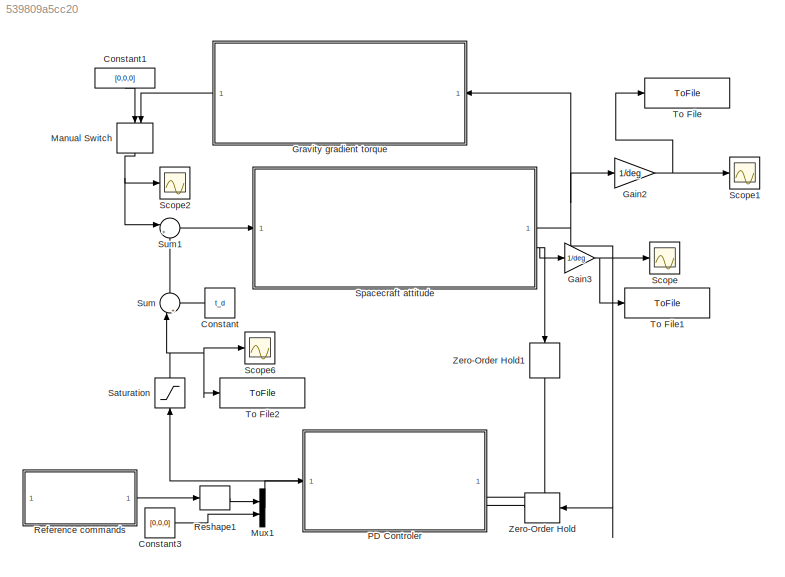
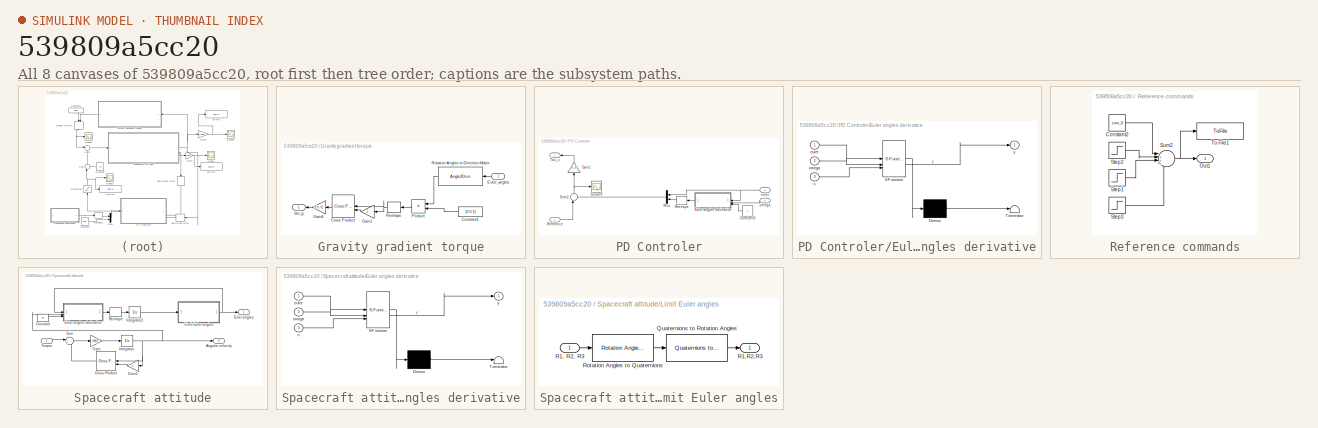
[diagram: thumbnail index - all 8 canvases of the model, root first then tree order]
MODEL slx_539809a5cc20
KIND model
CONFIG AbsTol = 1e-6
CONFIG EnableMultiTasking = off
CONFIG FixedStep = 0.1
CONFIG MaxStep = auto
CONFIG MinStep = auto
CONFIG RelTol = 1e-6
CONFIG SampleTimeConstraint = Unconstrained
CONFIG SolverName = FixedStepAuto
CONFIG StartTime = 0.0
CONFIG StopTime = 1500
BLOCK [Constant] Constant
  Value = t_d
BLOCK [Constant] Constant1
  NameLocation = right
  Value = [0,0,0]
BLOCK [Constant] Constant3
  Value = [0,0,0]
BLOCK [Gain] Gain2
  Gain = 1/deg
  Multiplication = Matrix(K*u)
BLOCK [Gain] Gain3
  Gain = 1/deg
  Multiplication = Matrix(K*u)
BLOCK [SubSystem] Gravity gradient torque
BLOCK [Constant] Gravity gradient torque/Constant1
  Value = [0,0,1]
BLOCK [Reference] Gravity gradient torque/Cross Product  REF=matrix_library/Cross Product
  SourceBlock = matrix_library/Cross Product
  SourceType = CrossProduct
BLOCK [Inport] Gravity gradient torque/Euler_angles
  NameLocation = top
BLOCK [Gain] Gravity gradient torque/Gain1
  Gain = J
  Multiplication = Matrix(K*u)
BLOCK [Gain] Gravity gradient torque/Gain4
  Gain = 3*n.^2
  Multiplication = Matrix(K*u)
BLOCK [Product] Gravity gradient torque/Product
  Multiplication = Matrix(*)
BLOCK [Reshape] Gravity gradient torque/Reshape
BLOCK [Angle2Dcm] Gravity gradient torque/Rotation Angles to Direction  Matrix
  AttributesFormatString = Rotation Order: %<rotationOrder>
BLOCK [Outport] Gravity gradient torque/tau_g
BLOCK [ManualSwitch] Manual Switch
  CurrentSetting = 0
  NameLocation = left
BLOCK [Mux] Mux1
  DisplayOption = bar
  Inputs = 2
BLOCK [SubSystem] PD Controler
  PortSchema = {"entries":[{"content":{"sides":[{"content":{"connectorIds":["Out1","In1"]},"type":"ConnectorPlacement.EquallySpacedRectSide","uuid":"f595316a-67fa-4e45-afef-328468ac5eb6"},{"content":{"connectorIds":["In2","In3"],"side":"RIGHT"},"type":"ConnectorPlacement.EquallySpacedRectSide","uuid":"1d08d35b-debb-44a1-b4ca-ee5ff70ce730"},{"content":{"side":"TOP"},"type":"ConnectorPlacement.EquallySpacedRectSid...<+234ch>
BLOCK [Constant] PD Controler/Constant2
  Value = n
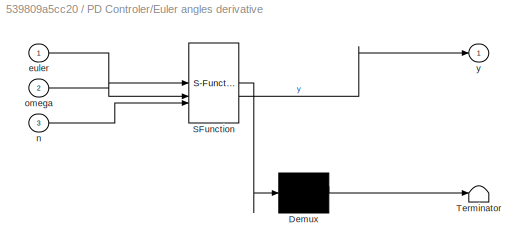
BLOCK [SubSystem] PD Controler/Euler angles derivative
  ErrorFcn = Stateflow.Translate.translate
  PermitHierarchicalResolution = ExplicitOnly
  SFBlockType = MATLAB Function
  TreatAsAtomicUnit = on
BLOCK [Demux] PD Controler/Euler angles derivative/ Demux 
  Outputs = 1
BLOCK [S-Function] PD Controler/Euler angles derivative/ SFunction 
  EnableBusSupport = on
  FunctionName = sf_sfun
  PortCounts = [3 2]
  SFcnIsStateOwnerBlock = off
  SFunctionDeploymentMode = off
  Tag = Stateflow S-Function 1
BLOCK [Terminator] PD Controler/Euler angles derivative/ Terminator 
BLOCK [Inport] PD Controler/Euler angles derivative/euler
BLOCK [Inport] PD Controler/Euler angles derivative/n
  Port = 3
BLOCK [Inport] PD Controler/Euler angles derivative/omega
  Port = 2
BLOCK [Outport] PD Controler/Euler angles derivative/y
BLOCK [Gain] PD Controler/Gain1
  Gain = K_e
  Multiplication = Matrix(K*u)
  NameLocation = left
BLOCK [Mux] PD Controler/Mux
  DisplayOption = bar
  Inputs = 2
BLOCK [Inport] PD Controler/Reference
BLOCK [Reshape] PD Controler/Reshape
BLOCK [Scope] PD Controler/Scope4
  Floating = off
  NumInputPorts = 1
  ScopeSpecificationString = Simulink.scopes.TimeScopeBlockCfg('CurrentConfiguration', extmgr.ConfigurationSet(extmgr.Configuration('Core','General UI',true),extmgr.Configuration('Core','Source UI',true),extmgr.Configuration('Sources','WiredSimulink',true,'DataLoggingVariableName','ScopeData1'),extmgr.Configuration('Visuals','Time Domain',true,'SerializedDisplays',{struct('MinYLimReal','-0.00092','MaxYLimReal','0.00032','YLab...<+1902ch>
BLOCK [Sum] PD Controler/Sum2
  Inputs = |+-
  NameLocation = right
BLOCK [Outport] PD Controler/Tau_c
BLOCK [Inport] PD Controler/euler
  Port = 3
BLOCK [Inport] PD Controler/omega
  Port = 2
BLOCK [SubSystem] Reference commands
BLOCK [Constant] Reference commands/Constant2
  Value = com_0
BLOCK [Outport] Reference commands/Out1
BLOCK [Step] Reference commands/Step1
  After = com_2 - com_1
  SampleTime = 0
  Time = 500.1
  VectorParams1D = off
BLOCK [Step] Reference commands/Step2
  After = com_1 - com_0
  SampleTime = 0
  Time = 100
  VectorParams1D = off
BLOCK [Step] Reference commands/Step3
  After = com_3 - com_2
  SampleTime = 0
  Time = 900.1
  VectorParams1D = off
BLOCK [Sum] Reference commands/Sum2
  Inputs = |++++
BLOCK [ToFile] Reference commands/To File1
  Filename = Reference_commands.mat
  MatrixName = values
  SaveFormat = Timeseries
BLOCK [Reshape] Reshape1
BLOCK [Saturate] Saturation
  LowerLimit = -1.5
  NameLocation = right
  UpperLimit = 1.5
BLOCK [Scope] Scope
  Floating = off
  NumInputPorts = 1
  ScopeSpecificationString = Simulink.scopes.TimeScopeBlockCfg('CurrentConfiguration', extmgr.ConfigurationSet(extmgr.Configuration('Core','General UI',true),extmgr.Configuration('Core','Source UI',true),extmgr.Configuration('Sources','WiredSimulink',true),extmgr.Configuration('Visuals','Time Domain',true,'SerializedDisplays',{struct('MinYLimReal','-0.06855','MaxYLimReal','0.00762','YLabelReal','','MinYLimMag','0.00000','MaxY...<+1828ch>
BLOCK [Scope] Scope1
  Floating = off
  NumInputPorts = 1
  ScopeSpecificationString = Simulink.scopes.TimeScopeBlockCfg('CurrentConfiguration', extmgr.ConfigurationSet(extmgr.Configuration('Core','General UI',true),extmgr.Configuration('Core','Source UI',true),extmgr.Configuration('Sources','WiredSimulink',true,'DataLoggingVariableName','ScopeData1'),extmgr.Configuration('Visuals','Time Domain',true,'SerializedDisplays',{struct('MinYLimReal','-87.17344','MaxYLimReal','87.05256','YL...<+1873ch>
BLOCK [Scope] Scope2
  Floating = off
  NumInputPorts = 1
  ScopeSpecificationString = Simulink.scopes.TimeScopeBlockCfg('CurrentConfiguration', extmgr.ConfigurationSet(extmgr.Configuration('Core','General UI',true),extmgr.Configuration('Core','Source UI',true),extmgr.Configuration('Sources','WiredSimulink',true,'DataLoggingVariableName','ScopeData1'),extmgr.Configuration('Visuals','Time Domain',true,'SerializedDisplays',{struct('MinYLimReal','-0.00026','MaxYLimReal','0.00026','YLab...<+1872ch>
BLOCK [Scope] Scope6
  Floating = off
  NumInputPorts = 1
  ScopeSpecificationString = Simulink.scopes.TimeScopeBlockCfg('CurrentConfiguration', extmgr.ConfigurationSet(extmgr.Configuration('Core','General UI',true),extmgr.Configuration('Core','Source UI',true),extmgr.Configuration('Sources','WiredSimulink',true,'DataLoggingVariableName','ScopeData4'),extmgr.Configuration('Visuals','Time Domain',true,'SerializedDisplays',{struct('MinYLimReal','-0.68316','MaxYLimReal','1.28013','YLab...<+1878ch>
BLOCK [SubSystem] Spacecraft attitude
BLOCK [Outport] Spacecraft attitude/Angular velocity
  Port = 2
BLOCK [Constant] Spacecraft attitude/Constant
  Value = n
BLOCK [Reference] Spacecraft attitude/Cross Product  REF=matrix_library/Cross Product
  LibrarySourceBlock = simulink/Matrix\nOperations/Cross Product
  SourceBlock = matrix_library/Cross Product
  SourceType = CrossProduct
BLOCK [Outport] Spacecraft attitude/Euler angles
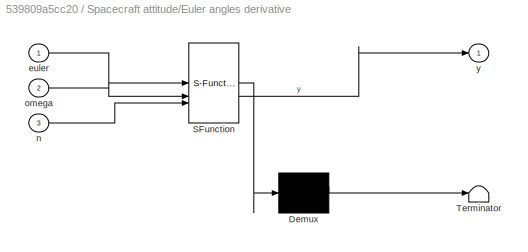
BLOCK [SubSystem] Spacecraft attitude/Euler angles derivative
  ErrorFcn = Stateflow.Translate.translate
  PermitHierarchicalResolution = ExplicitOnly
  SFBlockType = MATLAB Function
  TreatAsAtomicUnit = on
BLOCK [Demux] Spacecraft attitude/Euler angles derivative/ Demux 
  Outputs = 1
BLOCK [S-Function] Spacecraft attitude/Euler angles derivative/ SFunction 
  EnableBusSupport = on
  FunctionName = sf_sfun
  PortCounts = [3 2]
  SFcnIsStateOwnerBlock = off
  SFunctionDeploymentMode = off
  Tag = Stateflow S-Function 2
BLOCK [Terminator] Spacecraft attitude/Euler angles derivative/ Terminator 
BLOCK [Inport] Spacecraft attitude/Euler angles derivative/euler
BLOCK [Inport] Spacecraft attitude/Euler angles derivative/n
  Port = 3
BLOCK [Inport] Spacecraft attitude/Euler angles derivative/omega
  Port = 2
BLOCK [Outport] Spacecraft attitude/Euler angles derivative/y
BLOCK [Gain] Spacecraft attitude/Gain
  Gain = inv(J)
  Multiplication = Matrix(K*u)
BLOCK [Gain] Spacecraft attitude/Gain1
  Gain = J
  Multiplication = Matrix(K*u)
BLOCK [Integrator] Spacecraft attitude/Integrator
  InitialCondition = w
BLOCK [Integrator] Spacecraft attitude/Integrator1
  InitialCondition = initial_euler_angles
BLOCK [SubSystem] Spacecraft attitude/Limit Euler angles
BLOCK [Reference] Spacecraft attitude/Limit Euler angles/Quaternions to Rotation Angles  REF=sharedtransform/Quaternions to Rotation Angles
  AttributesFormatString = Rotation Order: %<rotationOrder>
  SourceBlock = sharedtransform/Quaternions to Rotation Angles
  SourceType = Quat2Ang
BLOCK [Inport] Spacecraft attitude/Limit Euler angles/R1, R2, R3
BLOCK [Outport] Spacecraft attitude/Limit Euler angles/R1,R2,R3
BLOCK [Reference] Spacecraft attitude/Limit Euler angles/Rotation Angles to Quaternions  REF=sharedtransform/Rotation Angles to Quaternions
  AttributesFormatString = Rotation Order: %<rotationOrder>
  SourceBlock = sharedtransform/Rotation Angles to Quaternions
  SourceType = Ang2Quat
BLOCK [Reshape] Spacecraft attitude/Reshape
BLOCK [Sum] Spacecraft attitude/Sum
  Inputs = |+-
  NameLocation = top
BLOCK [Inport] Spacecraft attitude/Torque
BLOCK [Sum] Sum
  Inputs = |++
  NameLocation = right
BLOCK [Sum] Sum1
  Inputs = |++
BLOCK [ToFile] To File
  Filename = Euler_angles.mat
  MatrixName = values
  SaveFormat = Timeseries
BLOCK [ToFile] To File1
  Filename = Angular_velocity.mat
  MatrixName = values
  SaveFormat = Timeseries
BLOCK [ToFile] To File2
  Filename = Torques.mat
  MatrixName = values
  SaveFormat = Timeseries
BLOCK [ZeroOrderHold] Zero-Order Hold
  SampleTime = 0.1
BLOCK [ZeroOrderHold] Zero-Order Hold1
  NameLocation = left
  SampleTime = 0.1
LINE Constant1:1 -> Manual Switch:1
LINE Constant3:1 -> Mux1:2
LINE Constant:1 -> Sum:2
NET Gain2:1 -> Scope1:1, To File:1
NET Gain3:1 -> Scope:1, To File1:1
LINE Gravity gradient torque/Constant1:1 -> Gravity gradient torque/Product:2
LINE Gravity gradient torque/Cross Product:1 -> Gravity gradient torque/Gain4:1
LINE Gravity gradient torque/Euler_angles:1 -> Gravity gradient torque/Rotation Angles to Direction  Matrix:1
LINE Gravity gradient torque/Gain1:1 -> Gravity gradient torque/Cross Product:2
LINE Gravity gradient torque/Gain4:1 -> Gravity gradient torque/tau_g:1
LINE Gravity gradient torque/Product:1 -> Gravity gradient torque/Reshape:1
NET Gravity gradient torque/Reshape:1 -> Gravity gradient torque/Cross Product:1, Gravity gradient torque/Gain1:1
LINE Gravity gradient torque/Rotation Angles to Direction  Matrix:1 -> Gravity gradient torque/Product:1
LINE Gravity gradient torque:1 -> Manual Switch:2
NET Manual Switch:1 -> Scope2:1, Sum1:1
LINE Mux1:1 -> PD Controler:1
LINE PD Controler/Constant2:1 -> PD Controler/Euler angles derivative:3
LINE PD Controler/Euler angles derivative:1 -> PD Controler/Reshape:1
LINE PD Controler/Gain1:1 -> PD Controler/Tau_c:1
LINE PD Controler/Mux:1 -> PD Controler/Sum2:2
LINE PD Controler/Reference:1 -> PD Controler/Sum2:1
LINE PD Controler/Reshape:1 -> PD Controler/Mux:2
NET PD Controler/Sum2:1 -> PD Controler/Gain1:1, PD Controler/Scope4:1
NET PD Controler/euler:1 -> PD Controler/Euler angles derivative:1, PD Controler/Mux:1
LINE PD Controler/omega:1 -> PD Controler/Euler angles derivative:2
LINE PD Controler:1 -> Saturation:1
LINE Reference commands/Constant2:1 -> Reference commands/Sum2:1
LINE Reference commands/Step1:1 -> Reference commands/Sum2:3
LINE Reference commands/Step2:1 -> Reference commands/Sum2:2
LINE Reference commands/Step3:1 -> Reference commands/Sum2:4
NET Reference commands/Sum2:1 -> Reference commands/Out1:1, Reference commands/To File1:1
LINE Reference commands:1 -> Reshape1:1
LINE Reshape1:1 -> Mux1:1
NET Saturation:1 -> Scope6:1, Sum:1, To File2:1
LINE Spacecraft attitude/Constant:1 -> Spacecraft attitude/Euler angles derivative:3
LINE Spacecraft attitude/Cross Product:1 -> Spacecraft attitude/Sum:2
LINE Spacecraft attitude/Euler angles derivative:1 -> Spacecraft attitude/Reshape:1
LINE Spacecraft attitude/Gain1:1 -> Spacecraft attitude/Cross Product:2
LINE Spacecraft attitude/Gain:1 -> Spacecraft attitude/Integrator:1
LINE Spacecraft attitude/Integrator1:1 -> Spacecraft attitude/Limit Euler angles:1
NET Spacecraft attitude/Integrator:1 -> Spacecraft attitude/Angular velocity:1, Spacecraft attitude/Cross Product:1, Spacecraft attitude/Euler angles derivative:2, Spacecraft attitude/Gain1:1
LINE Spacecraft attitude/Limit Euler angles/Quaternions to Rotation Angles:1 -> Spacecraft attitude/Limit Euler angles/R1,R2,R3:1
LINE Spacecraft attitude/Limit Euler angles/R1, R2, R3:1 -> Spacecraft attitude/Limit Euler angles/Rotation Angles to Quaternions:1
LINE Spacecraft attitude/Limit Euler angles/Rotation Angles to Quaternions:1 -> Spacecraft attitude/Limit Euler angles/Quaternions to Rotation Angles:1
NET Spacecraft attitude/Limit Euler angles:1 -> Spacecraft attitude/Euler angles derivative:1, Spacecraft attitude/Euler angles:1
LINE Spacecraft attitude/Reshape:1 -> Spacecraft attitude/Integrator1:1
LINE Spacecraft attitude/Sum:1 -> Spacecraft attitude/Gain:1
LINE Spacecraft attitude/Torque:1 -> Spacecraft attitude/Sum:1
NET Spacecraft attitude:1 -> Gain2:1, Gravity gradient torque:1, Zero-Order Hold:1
NET Spacecraft attitude:2 -> Gain3:1, Zero-Order Hold1:1
LINE Sum1:1 -> Spacecraft attitude:1
LINE Sum:1 -> Sum1:2
LINE Zero-Order Hold1:1 -> PD Controler:2
LINE Zero-Order Hold:1 -> PD Controler:3
note: NET lines group one-source signal fan-out (src -> all destinations, sorted); 1:1 wires keep LINE
CHART Spacecraft attitude/Euler angles derivative states=1 transitions=1
  STATE_LABEL 'eML_blk_kernel()'
  STATE_LABEL 'SCRIPT:\nfunction y = fcn(euler,omega,n)\ntheta = euler(2);\nphi = euler(3);\npsi = euler(1);\nmat = (1/cos(theta))*[cos(theta),sin(phi)*sin(theta),cos(phi)*sin(theta);\n0, cos(phi)*cos(theta),-sin(phi)*cos(theta);\n0, sin(phi), cos(phi)\n];\nz = mat*omega + n/cos(theta)*[sin(psi); cos(theta)*cos(psi); sin(theta)*sin(psi)];\ny = [z(3),z(2),z(1)];\n'
CHART PD Controler/Euler angles derivative states=1 transitions=1
  STATE_LABEL 'eML_blk_kernel()'
  STATE_LABEL 'SCRIPT:\nfunction y = fcn(euler,omega,n)\ntheta = euler(2);\nphi = euler(3);\npsi = euler(1);\nmat = (1/cos(theta))*[cos(theta),sin(phi)*sin(theta),cos(phi)*sin(theta);\n0, cos(phi)*cos(theta),-sin(phi)*cos(theta);\n0, sin(phi), cos(phi)\n];\nz = mat*omega + n/cos(theta)*[sin(psi); cos(theta)*cos(psi); sin(theta)*sin(psi)];\ny = [z(3),z(2),z(1)];\n'
CHART  states=0 transitions=0
CHART  states=0 transitions=0
